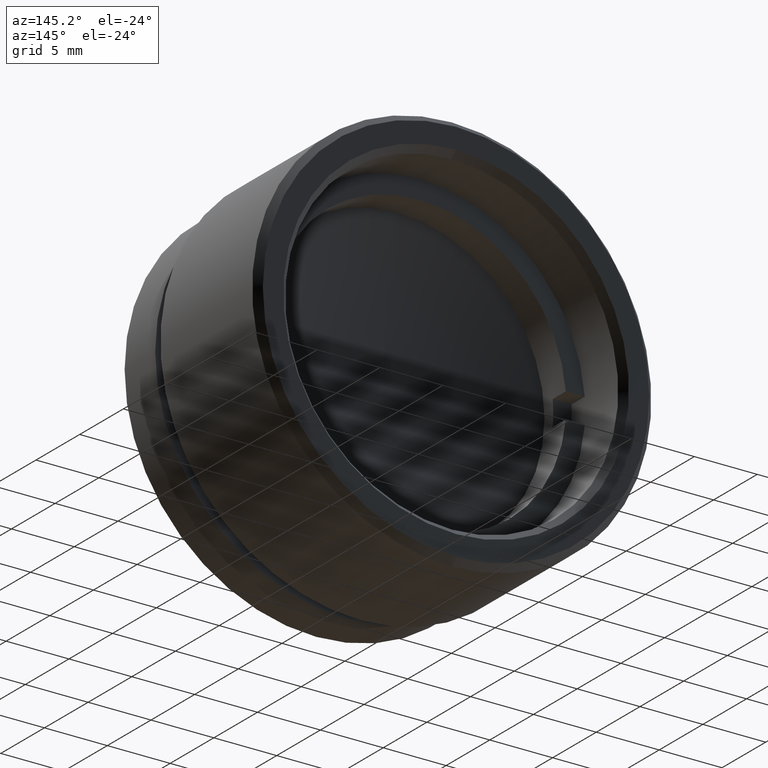
[diagram: clean part render]
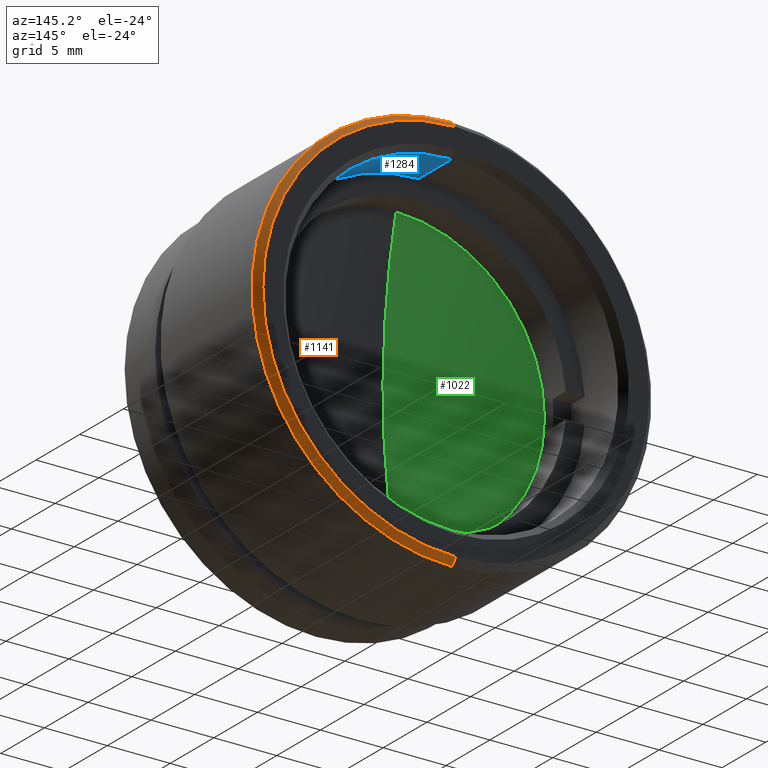
[diagram: same view with three faces highlighted in distinct colors, each labeled with its STEP entity id]
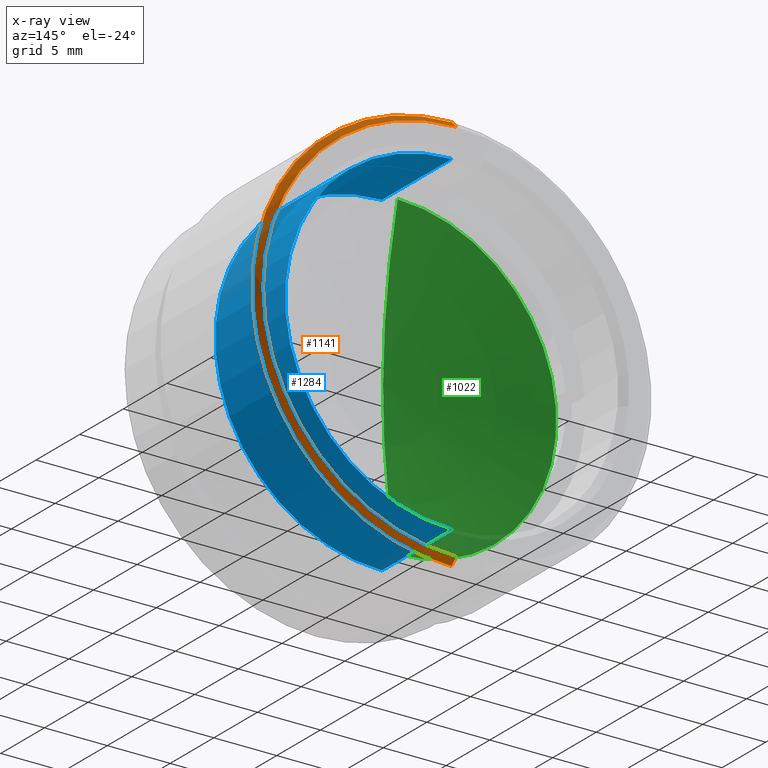
[diagram: x-ray of the same camera — body ghosted, the three highlighted faces saturated]
A machine part, auxiliary view with three faces highlighted in distinct colors.
The next image is the same camera in x-ray (body ghosted, the three faces saturated) — at least one of them is partly hidden behind the body in this view.
Their STEP definitions:

[orange] entity #1141 — the highlighted conical surface has half-angle 45 deg.
#16 = CIRCLE ( 'NONE', #765, 15.37500000000000355 ) ;
#105 = DIRECTION ( 'NONE',  ( 0.000000000000000000, -1.000000000000000000, 0.000000000000000000 ) ) ;
#175 = CARTESIAN_POINT ( 'NONE',  ( -62.96855859389910393, 20.65316592187942035, 19.92647029529263492 ) ) ;
#284 = VERTEX_POINT ( 'NONE', #1316 ) ;
#323 = CARTESIAN_POINT ( 'NONE',  ( -62.96855859389910393, 20.15316592187942035, 35.80147029529263847 ) ) ;
#390 = VERTEX_POINT ( 'NONE', #323 ) ;
#417 = CARTESIAN_POINT ( 'NONE',  ( -62.96855859389910393, 20.15316592187942035, 19.92647029529263492 ) ) ;
#439 = VERTEX_POINT ( 'NONE', #785 ) ;
#453 = CARTESIAN_POINT ( 'NONE',  ( -62.96855859389910393, 20.15316592187942035, 4.051470295292635804 ) ) ;
#490 = CARTESIAN_POINT ( 'NONE',  ( -62.96855859389910393, 20.15316592187942035, 19.92647029529263492 ) ) ;
#493 = ORIENTED_EDGE ( 'NONE', *, *, #1018, .F. ) ;
#525 = DIRECTION ( 'NONE',  ( 0.000000000000000000, 0.000000000000000000, 1.000000000000000000 ) ) ;
#591 = CARTESIAN_POINT ( 'NONE',  ( -62.96855859389910393, 20.65316592187942035, 4.551470295292635804 ) ) ;
#693 = VERTEX_POINT ( 'NONE', #591 ) ;
#756 = ORIENTED_EDGE ( 'NONE', *, *, #1073, .F. ) ;
#758 = DIRECTION ( 'NONE',  ( 0.000000000000000000, -1.000000000000000000, 0.000000000000000000 ) ) ;
#765 = AXIS2_PLACEMENT_3D ( 'NONE', #175, #1097, #1344 ) ;
#774 = EDGE_LOOP ( 'NONE', ( #493, #911, #1019, #756 ) ) ;
#785 = CARTESIAN_POINT ( 'NONE',  ( -62.96855859389910393, 20.65316592187942035, 35.30147029529263847 ) ) ;
#832 = LINE ( 'NONE', #453, #1431 ) ;
#865 = DIRECTION ( 'NONE',  ( 8.659560562354921765E-17, -0.7071067811865474617, 0.7071067811865474617 ) ) ;
#911 = ORIENTED_EDGE ( 'NONE', *, *, #958, .T. ) ;
#941 = EDGE_CURVE ( 'NONE', #284, #390, #1283, .T. ) ;
#943 = DIRECTION ( 'NONE',  ( 0.000000000000000000, 0.000000000000000000, -1.000000000000000000 ) ) ;
#958 = EDGE_CURVE ( 'NONE', #439, #390, #1464, .T. ) ;
#1018 = EDGE_CURVE ( 'NONE', #439, #693, #16, .T. ) ;
#1019 = ORIENTED_EDGE ( 'NONE', *, *, #941, .F. ) ;
#1036 = VECTOR ( 'NONE', #865, 1000.000000000000114 ) ;
#1073 = EDGE_CURVE ( 'NONE', #693, #284, #832, .T. ) ;
#1097 = DIRECTION ( 'NONE',  ( 0.000000000000000000, 1.000000000000000000, 0.000000000000000000 ) ) ;
#1135 = CONICAL_SURFACE ( 'NONE', #1257, 15.87500000000000000, 0.7853981633974476129 ) ;
#1141 = ADVANCED_FACE ( 'NONE', ( #1388 ), #1135, .T. ) ;
#1257 = AXIS2_PLACEMENT_3D ( 'NONE', #490, #105, #943 ) ;
#1283 = CIRCLE ( 'NONE', #1381, 15.87500000000000355 ) ;
#1316 = CARTESIAN_POINT ( 'NONE',  ( -62.96855859389910393, 20.15316592187942035, 4.051470295292635804 ) ) ;
#1344 = DIRECTION ( 'NONE',  ( 0.000000000000000000, 0.000000000000000000, 1.000000000000000000 ) ) ;
#1381 = AXIS2_PLACEMENT_3D ( 'NONE', #417, #758, #525 ) ;
#1388 = FACE_OUTER_BOUND ( 'NONE', #774, .T. ) ;
#1413 = DIRECTION ( 'NONE',  ( 0.000000000000000000, -0.7071067811865474617, -0.7071067811865474617 ) ) ;
#1431 = VECTOR ( 'NONE', #1413, 1000.000000000000114 ) ;
#1464 = LINE ( 'NONE', #1468, #1036 ) ;
#1468 = CARTESIAN_POINT ( 'NONE',  ( -62.96855859389910393, 20.15316592187942035, 35.80147029529263847 ) ) ;

[blue] entity #1284 — the highlighted cylindrical surface (partial cylindrical patch) has radius 13.25 mm, axis along (0, -1, 0).
#46 = CARTESIAN_POINT ( 'NONE',  ( -62.96855859389910393, 20.15316592187942035, 6.676470295292635804 ) ) ;
#47 = ORIENTED_EDGE ( 'NONE', *, *, #1407, .T. ) ;
#112 = AXIS2_PLACEMENT_3D ( 'NONE', #342, #690, #219 ) ;
#161 = CARTESIAN_POINT ( 'NONE',  ( -62.96855859389910393, 12.15316592187942035, 6.676470295292635804 ) ) ;
#191 = DIRECTION ( 'NONE',  ( 0.000000000000000000, 0.000000000000000000, -1.000000000000000000 ) ) ;
#219 = DIRECTION ( 'NONE',  ( 0.000000000000000000, 0.000000000000000000, 1.000000000000000000 ) ) ;
#229 = AXIS2_PLACEMENT_3D ( 'NONE', #1461, #550, #191 ) ;
#236 = VERTEX_POINT ( 'NONE', #46 ) ;
#290 = DIRECTION ( 'NONE',  ( 0.000000000000000000, -1.000000000000000000, 0.000000000000000000 ) ) ;
#342 = CARTESIAN_POINT ( 'NONE',  ( -62.96855859389910393, 20.15316592187942035, 19.92647029529263492 ) ) ;
#358 = VECTOR ( 'NONE', #290, 1000.000000000000000 ) ;
#378 = EDGE_LOOP ( 'NONE', ( #668, #700, #1243, #47 ) ) ;
#443 = EDGE_CURVE ( 'NONE', #1116, #236, #991, .T. ) ;
#513 = VERTEX_POINT ( 'NONE', #161 ) ;
#516 = CYLINDRICAL_SURFACE ( 'NONE', #650, 13.25000000000000000 ) ;
#550 = DIRECTION ( 'NONE',  ( 0.000000000000000000, -1.000000000000000000, 0.000000000000000000 ) ) ;
#635 = DIRECTION ( 'NONE',  ( 0.000000000000000000, -1.000000000000000000, 0.000000000000000000 ) ) ;
#639 = EDGE_CURVE ( 'NONE', #1116, #1355, #669, .T. ) ;
#650 = AXIS2_PLACEMENT_3D ( 'NONE', #1085, #635, #1099 ) ;
#668 = ORIENTED_EDGE ( 'NONE', *, *, #639, .F. ) ;
#669 = LINE ( 'NONE', #1274, #849 ) ;
#690 = DIRECTION ( 'NONE',  ( 0.000000000000000000, 1.000000000000000000, 0.000000000000000000 ) ) ;
#700 = ORIENTED_EDGE ( 'NONE', *, *, #443, .T. ) ;
#702 = CIRCLE ( 'NONE', #229, 13.25000000000000000 ) ;
#810 = CARTESIAN_POINT ( 'NONE',  ( -62.96855859389910393, 20.15316592187942035, 33.17647029529263847 ) ) ;
#849 = VECTOR ( 'NONE', #1245, 1000.000000000000000 ) ;
#900 = CARTESIAN_POINT ( 'NONE',  ( -62.96855859389910393, 12.15316592187942035, 33.17647029529263847 ) ) ;
#960 = FACE_OUTER_BOUND ( 'NONE', #378, .T. ) ;
#990 = LINE ( 'NONE', #1459, #358 ) ;
#991 = CIRCLE ( 'NONE', #112, 13.25000000000000178 ) ;
#1050 = EDGE_CURVE ( 'NONE', #236, #513, #990, .T. ) ;
#1085 = CARTESIAN_POINT ( 'NONE',  ( -62.96855859389910393, 4.153165921879420353, 19.92647029529263492 ) ) ;
#1099 = DIRECTION ( 'NONE',  ( 0.000000000000000000, 0.000000000000000000, -1.000000000000000000 ) ) ;
#1116 = VERTEX_POINT ( 'NONE', #810 ) ;
#1243 = ORIENTED_EDGE ( 'NONE', *, *, #1050, .T. ) ;
#1245 = DIRECTION ( 'NONE',  ( 0.000000000000000000, -1.000000000000000000, 0.000000000000000000 ) ) ;
#1274 = CARTESIAN_POINT ( 'NONE',  ( -62.96855859389910393, 4.153165921879420353, 33.17647029529263847 ) ) ;
#1284 = ADVANCED_FACE ( 'NONE', ( #960 ), #516, .F. ) ;
#1355 = VERTEX_POINT ( 'NONE', #900 ) ;
#1407 = EDGE_CURVE ( 'NONE', #513, #1355, #702, .T. ) ;
#1459 = CARTESIAN_POINT ( 'NONE',  ( -62.96855859389910393, 4.153165921879420353, 6.676470295292635804 ) ) ;
#1461 = CARTESIAN_POINT ( 'NONE',  ( -62.96855859389910393, 12.15316592187942035, 19.92647029529263492 ) ) ;

[green] entity #1022 — the highlighted spherical surface has radius 52 mm.
#4 = ORIENTED_EDGE ( 'NONE', *, *, #1494, .T. ) ;
#40 = CIRCLE ( 'NONE', #892, 12.70000000000000107 ) ;
#64 = DIRECTION ( 'NONE',  ( -4.397347562805371293E-19, -1.000000000000000000, 2.668822164930659473E-16 ) ) ;
#192 = DIRECTION ( 'NONE',  ( 0.005561413065056599291, -2.668805347656626185E-16, -0.9999845352227801909 ) ) ;
#274 = EDGE_LOOP ( 'NONE', ( #320, #4 ) ) ;
#301 = CIRCLE ( 'NONE', #530, 52.00000000000000000 ) ;
#320 = ORIENTED_EDGE ( 'NONE', *, *, #467, .F. ) ;
#395 = CARTESIAN_POINT ( 'NONE',  ( -62.89792864797274774, 13.86229803992439180, 7.226666697963587183 ) ) ;
#451 = DIRECTION ( 'NONE',  ( -0.005561413065056295714, 1.365923996832131363E-16, 0.9999845352227803019 ) ) ;
#467 = EDGE_CURVE ( 'NONE', #1007, #1139, #301, .T. ) ;
#519 = DIRECTION ( 'NONE',  ( -0.005561413065056600158, 2.668805347656626678E-16, 0.9999845352227801909 ) ) ;
#530 = AXIS2_PLACEMENT_3D ( 'NONE', #1287, #1366, #192 ) ;
#794 = CARTESIAN_POINT ( 'NONE',  ( -62.96855859389896892, 13.86229803992439180, 19.92647029529285163 ) ) ;
#859 = SPHERICAL_SURFACE ( 'NONE', #864, 52.00000000000000000 ) ;
#864 = AXIS2_PLACEMENT_3D ( 'NONE', #1228, #64, #519 ) ;
#884 = FACE_OUTER_BOUND ( 'NONE', #274, .T. ) ;
#892 = AXIS2_PLACEMENT_3D ( 'NONE', #794, #1497, #451 ) ;
#1007 = VERTEX_POINT ( 'NONE', #395 ) ;
#1022 = ADVANCED_FACE ( 'NONE', ( #884 ), #859, .F. ) ;
#1048 = CARTESIAN_POINT ( 'NONE',  ( -63.03918853982518300, 13.86229803992439180, 32.62627389262220845 ) ) ;
#1139 = VERTEX_POINT ( 'NONE', #1048 ) ;
#1228 = CARTESIAN_POINT ( 'NONE',  ( -62.96855859389896892, 64.28758931325245385, 19.92647029529289071 ) ) ;
#1287 = CARTESIAN_POINT ( 'NONE',  ( -62.96855859389896892, 64.28758931325245385, 19.92647029529289071 ) ) ;
#1366 = DIRECTION ( 'NONE',  ( -0.9999845352227803019, -1.044514289755324097E-18, -0.005561413065056670414 ) ) ;
#1494 = EDGE_CURVE ( 'NONE', #1007, #1139, #40, .T. ) ;
#1497 = DIRECTION ( 'NONE',  ( -3.659266894335748121E-32, 1.000000000000000000, -1.878145495644178128E-16 ) ) ;